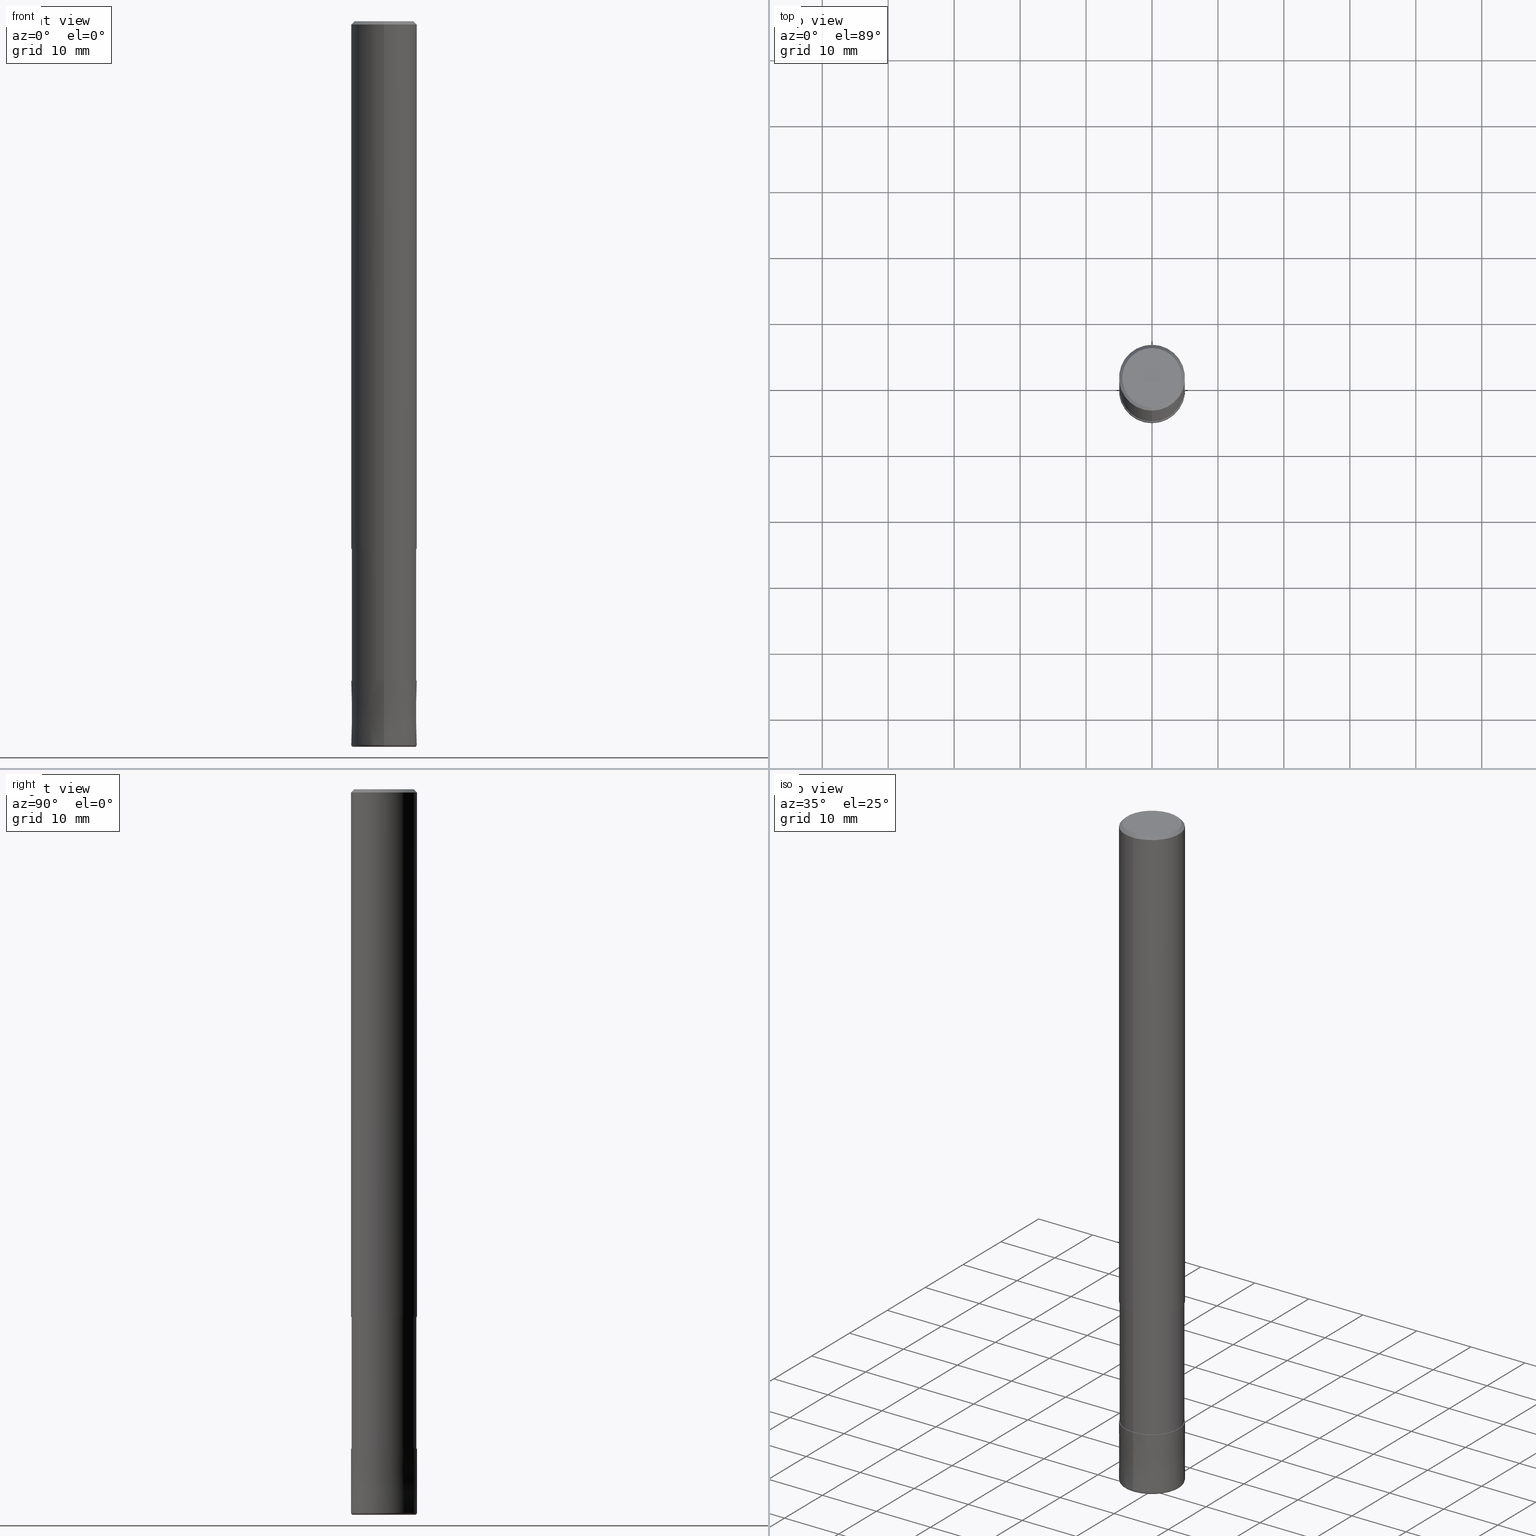
[diagram: canonical four-view strip — front | top / right | iso, engineering-drawing reading convention]
A machine part, canonical four-view strip (front | top / right | iso — engineering-drawing reading convention). The complete STEP part file that produces these views, byte-faithful:
ISO-10303-21;
HEADER;
FILE_DESCRIPTION(('no description'),'unknown implementation level');
FILE_NAME('CRRS4100-03-30-Huellk.stp','  ',('CIMSOURCE GmbH'),('CADClick - KiM GmbH - www.kimweb.de'),'unknown preprocess','ACIS','unknown authorization');
FILE_SCHEMA(('automotive_design'));
ENDSEC;
DATA;
#1=MECHANICAL_DESIGN_GEOMETRIC_PRESENTATION_REPRESENTATION(' ',(#14,#15,#16,#17,#18,#19,#20,#21,#22,#23,#24,#25,#26,#27,#28,#29,#30,#31,#32,#33,#34,#35,#36,#37,#38,#39,#40,#41,#42,#43,#44,#45,#46,#47,#48,#49,#50,#51,#52,#53,#54,#55,#56,#57,#58,#59,#60,#61,#62,#63,#64,#65,#66,#67,#68,#69,#70,#71,#72),#10);
#2=PRODUCT_DEFINITION_CONTEXT('',#73,'design');
#3=APPLICATION_PROTOCOL_DEFINITION('INTERNATIONAL STANDARD','automotive_design',1994,#73);
#4=PRODUCT_CATEGORY_RELATIONSHIP('NONE','NONE',#74,#75);
#5=SHAPE_DEFINITION_REPRESENTATION(#76,#77);
#6=PRODUCT_DEFINITION_CONTEXT('',#78,'design');
#7=APPLICATION_PROTOCOL_DEFINITION('INTERNATIONAL STANDARD','automotive_design',1994,#78);
#8=PRODUCT_CATEGORY_RELATIONSHIP('NONE','NONE',#79,#80);
#9=SHAPE_DEFINITION_REPRESENTATION(#81,#82);
#10= (GEOMETRIC_REPRESENTATION_CONTEXT(3)GLOBAL_UNCERTAINTY_ASSIGNED_CONTEXT((#85))GLOBAL_UNIT_ASSIGNED_CONTEXT((#87,#88,#89))REPRESENTATION_CONTEXT('NONE','WORKSPACE'));
#14=STYLED_ITEM('',(#91),#92);
#15=STYLED_ITEM('',(#93),#94);
#16=STYLED_ITEM('',(#95),#96);
#17=STYLED_ITEM('',(#97),#98);
#18=STYLED_ITEM('',(#99),#100);
#19=STYLED_ITEM('',(#101),#102);
#20=STYLED_ITEM('',(#103),#104);
#21=STYLED_ITEM('',(#105),#106);
#22=STYLED_ITEM('',(#107),#108);
#23=STYLED_ITEM('',(#109),#110);
#24=STYLED_ITEM('',(#111),#112);
#25=STYLED_ITEM('',(#113),#114);
#26=STYLED_ITEM('',(#115),#116);
#27=STYLED_ITEM('',(#117),#118);
#28=STYLED_ITEM('',(#119),#120);
#29=STYLED_ITEM('',(#121),#122);
#30=STYLED_ITEM('',(#123),#124);
#31=STYLED_ITEM('',(#125),#126);
#32=STYLED_ITEM('',(#127),#128);
#33=STYLED_ITEM('',(#129),#130);
#34=STYLED_ITEM('',(#131),#132);
#35=STYLED_ITEM('',(#133),#134);
#36=STYLED_ITEM('',(#135),#136);
#37=STYLED_ITEM('',(#137),#138);
#38=STYLED_ITEM('',(#139),#140);
#39=STYLED_ITEM('',(#141),#142);
#40=STYLED_ITEM('',(#143),#144);
#41=STYLED_ITEM('',(#145),#146);
#42=STYLED_ITEM('',(#147),#148);
#43=STYLED_ITEM('',(#149),#150);
#44=STYLED_ITEM('',(#151),#152);
#45=STYLED_ITEM('',(#153),#154);
#46=STYLED_ITEM('',(#155),#156);
#47=STYLED_ITEM('',(#157),#158);
#48=STYLED_ITEM('',(#159),#160);
#49=STYLED_ITEM('',(#161),#162);
#50=STYLED_ITEM('',(#163),#164);
#51=STYLED_ITEM('',(#165),#166);
#52=STYLED_ITEM('',(#167),#168);
#53=STYLED_ITEM('',(#169),#170);
#54=STYLED_ITEM('',(#171),#172);
#55=STYLED_ITEM('',(#173),#174);
#56=STYLED_ITEM('',(#175),#176);
#57=STYLED_ITEM('',(#177),#178);
#58=STYLED_ITEM('',(#179),#180);
#59=STYLED_ITEM('',(#181),#182);
#60=STYLED_ITEM('',(#183),#184);
#61=STYLED_ITEM('',(#185),#186);
#62=STYLED_ITEM('',(#187),#188);
#63=STYLED_ITEM('',(#189),#190);
#64=STYLED_ITEM('',(#191),#192);
#65=STYLED_ITEM('',(#193),#194);
#66=STYLED_ITEM('',(#195),#196);
#67=STYLED_ITEM('',(#197),#198);
#68=STYLED_ITEM('',(#199),#200);
#69=STYLED_ITEM('',(#201),#202);
#70=STYLED_ITEM('',(#203),#204);
#71=STYLED_ITEM('',(#205),#206);
#72=STYLED_ITEM('',(#207),#208);
#73=APPLICATION_CONTEXT(' ');
#74=PRODUCT_CATEGORY('part','NONE');
#75=PRODUCT_RELATED_PRODUCT_CATEGORY('detail',' ',(#209));
#76=PRODUCT_DEFINITION_SHAPE('NONE','NONE',#210);
#77=ADVANCED_BREP_SHAPE_REPRESENTATION('1',(#200,#211),#10);
#78=APPLICATION_CONTEXT(' ');
#79=PRODUCT_CATEGORY('part','NONE');
#80=PRODUCT_RELATED_PRODUCT_CATEGORY('detail',' ',(#212));
#81=PRODUCT_DEFINITION_SHAPE('NONE','NONE',#213);
#82=ADVANCED_BREP_SHAPE_REPRESENTATION('2',(#184,#214),#10);
#85=UNCERTAINTY_MEASURE_WITH_UNIT(LENGTH_MEASURE(1.0E-006),#87,'','');
#87= (CONVERSION_BASED_UNIT('MILLIMETRE',#217)LENGTH_UNIT()NAMED_UNIT(#220));
#88= (NAMED_UNIT(#222)PLANE_ANGLE_UNIT()SI_UNIT($,.RADIAN.));
#89= (NAMED_UNIT(#222)SOLID_ANGLE_UNIT()SI_UNIT($,.STERADIAN.));
#91=PRESENTATION_STYLE_ASSIGNMENT((#228));
#92=EDGE_CURVE('',#98,#142,#229,.T.);
#93=PRESENTATION_STYLE_ASSIGNMENT((#230));
#94=VERTEX_POINT('',#231);
#95=PRESENTATION_STYLE_ASSIGNMENT((#232));
#96=EDGE_CURVE('',#114,#112,#233,.T.);
#97=PRESENTATION_STYLE_ASSIGNMENT((#234));
#98=VERTEX_POINT('',#235);
#99=PRESENTATION_STYLE_ASSIGNMENT((#236));
#100=EDGE_CURVE('',#104,#182,#237,.T.);
#101=PRESENTATION_STYLE_ASSIGNMENT((#238));
#102=EDGE_CURVE('',#98,#118,#239,.T.);
#103=PRESENTATION_STYLE_ASSIGNMENT((#240));
#104=VERTEX_POINT('',#241);
#105=PRESENTATION_STYLE_ASSIGNMENT((#242));
#106=EDGE_CURVE('',#126,#196,#243,.T.);
#107=PRESENTATION_STYLE_ASSIGNMENT((#244));
#108=ADVANCED_FACE('',(#245),#246,.T.);
#109=PRESENTATION_STYLE_ASSIGNMENT((#247));
#110=ADVANCED_FACE('',(#248),#249,.T.);
#111=PRESENTATION_STYLE_ASSIGNMENT((#250));
#112=VERTEX_POINT('',#251);
#113=PRESENTATION_STYLE_ASSIGNMENT((#252));
#114=VERTEX_POINT('',#253);
#115=PRESENTATION_STYLE_ASSIGNMENT((#254));
#116=ADVANCED_FACE('',(#255),#256,.T.);
#117=PRESENTATION_STYLE_ASSIGNMENT((#257));
#118=VERTEX_POINT('',#258);
#119=PRESENTATION_STYLE_ASSIGNMENT((#259));
#120=EDGE_CURVE('',#154,#126,#260,.T.);
#121=PRESENTATION_STYLE_ASSIGNMENT((#261));
#122=EDGE_CURVE('',#158,#118,#262,.T.);
#123=PRESENTATION_STYLE_ASSIGNMENT((#263));
#124=VERTEX_POINT('',#264);
#125=PRESENTATION_STYLE_ASSIGNMENT((#265));
#126=VERTEX_POINT('',#266);
#127=PRESENTATION_STYLE_ASSIGNMENT((#267));
#128=ADVANCED_FACE('',(#268),#269,.T.);
#129=PRESENTATION_STYLE_ASSIGNMENT((#270));
#130=VERTEX_POINT('',#271);
#131=PRESENTATION_STYLE_ASSIGNMENT((#272));
#132=EDGE_CURVE('',#94,#196,#273,.T.);
#133=PRESENTATION_STYLE_ASSIGNMENT((#274));
#134=EDGE_CURVE('',#164,#142,#275,.T.);
#135=PRESENTATION_STYLE_ASSIGNMENT((#276));
#136=EDGE_CURVE('',#118,#158,#277,.T.);
#137=PRESENTATION_STYLE_ASSIGNMENT((#278));
#138=EDGE_CURVE('',#104,#126,#279,.T.);
#139=PRESENTATION_STYLE_ASSIGNMENT((#280));
#140=EDGE_CURVE('',#98,#124,#281,.T.);
#141=PRESENTATION_STYLE_ASSIGNMENT((#282));
#142=VERTEX_POINT('',#283);
#143=PRESENTATION_STYLE_ASSIGNMENT((#284));
#144=ADVANCED_FACE('',(#285),#286,.T.);
#145=PRESENTATION_STYLE_ASSIGNMENT((#287));
#146=ADVANCED_FACE('',(#288),#289,.T.);
#147=PRESENTATION_STYLE_ASSIGNMENT((#290));
#148=ADVANCED_FACE('',(#291),#292,.T.);
#149=PRESENTATION_STYLE_ASSIGNMENT((#293));
#150=ADVANCED_FACE('',(#294),#295,.T.);
#151=PRESENTATION_STYLE_ASSIGNMENT((#296));
#152=ADVANCED_FACE('',(#297),#298,.T.);
#153=PRESENTATION_STYLE_ASSIGNMENT((#299));
#154=VERTEX_POINT('',#300);
#155=PRESENTATION_STYLE_ASSIGNMENT((#301));
#156=EDGE_CURVE('',#126,#154,#302,.T.);
#157=PRESENTATION_STYLE_ASSIGNMENT((#303));
#158=VERTEX_POINT('',#304);
#159=PRESENTATION_STYLE_ASSIGNMENT((#305));
#160=EDGE_CURVE('',#154,#182,#306,.T.);
#161=PRESENTATION_STYLE_ASSIGNMENT((#307));
#162=EDGE_CURVE('',#142,#98,#308,.T.);
#163=PRESENTATION_STYLE_ASSIGNMENT((#309));
#164=VERTEX_POINT('',#310);
#165=PRESENTATION_STYLE_ASSIGNMENT((#311));
#166=EDGE_CURVE('',#112,#176,#312,.T.);
#167=PRESENTATION_STYLE_ASSIGNMENT((#313));
#168=EDGE_CURVE('',#182,#104,#314,.T.);
#169=PRESENTATION_STYLE_ASSIGNMENT((#315));
#170=EDGE_CURVE('',#158,#142,#316,.T.);
#171=PRESENTATION_STYLE_ASSIGNMENT((#317));
#172=EDGE_CURVE('',#130,#114,#318,.T.);
#173=PRESENTATION_STYLE_ASSIGNMENT((#319));
#174=ADVANCED_FACE('',(#320,#321),#322,.T.);
#175=PRESENTATION_STYLE_ASSIGNMENT((#323));
#176=VERTEX_POINT('',#324);
#177=PRESENTATION_STYLE_ASSIGNMENT((#325));
#178=EDGE_CURVE('',#94,#154,#326,.T.);
#179=PRESENTATION_STYLE_ASSIGNMENT((#327));
#180=EDGE_CURVE('',#176,#130,#328,.T.);
#181=PRESENTATION_STYLE_ASSIGNMENT((#329));
#182=VERTEX_POINT('',#330);
#183=PRESENTATION_STYLE_ASSIGNMENT((#331));
#184=MANIFOLD_SOLID_BREP('2',#332);
#185=PRESENTATION_STYLE_ASSIGNMENT((#333));
#186=EDGE_CURVE('',#196,#94,#334,.T.);
#187=PRESENTATION_STYLE_ASSIGNMENT((#335));
#188=ADVANCED_FACE('',(#336),#337,.T.);
#189=PRESENTATION_STYLE_ASSIGNMENT((#338));
#190=ADVANCED_FACE('',(#339),#340,.T.);
#191=PRESENTATION_STYLE_ASSIGNMENT((#341));
#192=EDGE_CURVE('',#130,#176,#342,.T.);
#193=PRESENTATION_STYLE_ASSIGNMENT((#343));
#194=ADVANCED_FACE('',(#344),#345,.T.);
#195=PRESENTATION_STYLE_ASSIGNMENT((#346));
#196=VERTEX_POINT('',#347);
#197=PRESENTATION_STYLE_ASSIGNMENT((#348));
#198=ADVANCED_FACE('',(#349),#350,.T.);
#199=PRESENTATION_STYLE_ASSIGNMENT((#351));
#200=MANIFOLD_SOLID_BREP('1',#352);
#201=PRESENTATION_STYLE_ASSIGNMENT((#353));
#202=EDGE_CURVE('',#112,#114,#354,.T.);
#203=PRESENTATION_STYLE_ASSIGNMENT((#355));
#204=EDGE_CURVE('',#164,#124,#356,.T.);
#205=PRESENTATION_STYLE_ASSIGNMENT((#357));
#206=ADVANCED_FACE('',(#358),#359,.T.);
#207=PRESENTATION_STYLE_ASSIGNMENT((#360));
#208=EDGE_CURVE('',#124,#164,#361,.T.);
#209=PRODUCT('1','1','PART-1-DESC',(#362));
#210=PRODUCT_DEFINITION('NONE','NONE',#363,#2);
#211=AXIS2_PLACEMENT_3D('',#364,#365,#366);
#212=PRODUCT('2','2','PART-2-DESC',(#367));
#213=PRODUCT_DEFINITION('NONE','NONE',#368,#6);
#214=AXIS2_PLACEMENT_3D('',#369,#370,#371);
#217=LENGTH_MEASURE_WITH_UNIT(LENGTH_MEASURE(1.0),#372);
#220=DIMENSIONAL_EXPONENTS(1.0,0.0,0.0,0.0,0.0,0.0,0.0);
#222=DIMENSIONAL_EXPONENTS(0.0,0.0,0.0,0.0,0.0,0.0,0.0);
#228=CURVE_STYLE('',#373,POSITIVE_LENGTH_MEASURE(1.0E-006),#374);
#229=CIRCLE('',#375,5.0);
#230=POINT_STYLE(' ',#376,POSITIVE_LENGTH_MEASURE(1.0E-006),#377);
#231=CARTESIAN_POINT('',(0.0,4.5,0.0));
#232=CURVE_STYLE('',#378,POSITIVE_LENGTH_MEASURE(1.0E-006),#379);
#233=CIRCLE('',#380,4.90995);
#234=POINT_STYLE(' ',#381,POSITIVE_LENGTH_MEASURE(1.0E-006),#382);
#235=CARTESIAN_POINT('',(6.12303176911189E-016,-5.0,-109.7));
#236=CURVE_STYLE('',#383,POSITIVE_LENGTH_MEASURE(1.0E-006),#384);
#237=CIRCLE('',#385,5.0);
#238=CURVE_STYLE('',#386,POSITIVE_LENGTH_MEASURE(1.0E-006),#387);
#239=LINE('',#388,#389);
#240=POINT_STYLE(' ',#390,POSITIVE_LENGTH_MEASURE(1.0E-006),#391);
#241=CARTESIAN_POINT('',(6.12303176911189E-016,-5.0,-80.0));
#242=CURVE_STYLE('',#392,POSITIVE_LENGTH_MEASURE(1.0E-006),#393);
#243=LINE('',#394,#395);
#244=SURFACE_STYLE_USAGE(.BOTH.,#396);
#245=FACE_OUTER_BOUND('',#397,.T.);
#246=TOROIDAL_SURFACE('',#398,4.7,0.300000000000002);
#247=SURFACE_STYLE_USAGE(.BOTH.,#399);
#248=FACE_OUTER_BOUND('',#400,.T.);
#249=PLANE('',#401);
#250=POINT_STYLE(' ',#402,POSITIVE_LENGTH_MEASURE(1.0E-006),#403);
#251=CARTESIAN_POINT('',(0.0,4.90995,-80.0));
#252=POINT_STYLE(' ',#404,POSITIVE_LENGTH_MEASURE(1.0E-006),#405);
#253=CARTESIAN_POINT('',(6.01275596695018E-016,-4.90995,-80.0));
#254=SURFACE_STYLE_USAGE(.BOTH.,#406);
#255=FACE_OUTER_BOUND('',#407,.T.);
#256=TOROIDAL_SURFACE('',#408,4.7,0.300000000000002);
#257=POINT_STYLE(' ',#409,POSITIVE_LENGTH_MEASURE(1.0E-006),#410);
#258=CARTESIAN_POINT('',(6.1229093084765E-016,-4.9999,-100.0));
#259=CURVE_STYLE('',#411,POSITIVE_LENGTH_MEASURE(1.0E-006),#412);
#260=CIRCLE('',#413,5.0);
#261=CURVE_STYLE('',#414,POSITIVE_LENGTH_MEASURE(1.0E-006),#415);
#262=CIRCLE('',#416,4.9999);
#263=POINT_STYLE(' ',#417,POSITIVE_LENGTH_MEASURE(1.0E-006),#418);
#264=CARTESIAN_POINT('',(5.75564986296517E-016,-4.7,-110.0));
#265=POINT_STYLE(' ',#419,POSITIVE_LENGTH_MEASURE(1.0E-006),#420);
#266=CARTESIAN_POINT('',(6.12303176911189E-016,-5.0,-0.5));
#267=SURFACE_STYLE_USAGE(.BOTH.,#421);
#268=FACE_OUTER_BOUND('',#422,.T.);
#269=CYLINDRICAL_SURFACE('',#423,4.90995);
#270=POINT_STYLE(' ',#424,POSITIVE_LENGTH_MEASURE(1.0E-006),#425);
#271=CARTESIAN_POINT('',(6.01275596695018E-016,-4.90995,-100.0));
#272=CURVE_STYLE('',#426,POSITIVE_LENGTH_MEASURE(1.0E-006),#427);
#273=CIRCLE('',#428,4.5);
#274=CURVE_STYLE('',#429,POSITIVE_LENGTH_MEASURE(1.0E-006),#430);
#275=CIRCLE('',#431,0.300000000000002);
#276=CURVE_STYLE('',#432,POSITIVE_LENGTH_MEASURE(1.0E-006),#433);
#277=CIRCLE('',#434,4.9999);
#278=CURVE_STYLE('',#435,POSITIVE_LENGTH_MEASURE(1.0E-006),#436);
#279=LINE('',#437,#438);
#280=CURVE_STYLE('',#439,POSITIVE_LENGTH_MEASURE(1.0E-006),#440);
#281=CIRCLE('',#441,0.300000000000002);
#282=POINT_STYLE(' ',#442,POSITIVE_LENGTH_MEASURE(1.0E-006),#443);
#283=CARTESIAN_POINT('',(0.0,5.0,-109.7));
#284=SURFACE_STYLE_USAGE(.BOTH.,#444);
#285=FACE_OUTER_BOUND('',#445,.T.);
#286=CYLINDRICAL_SURFACE('',#446,5.0);
#287=SURFACE_STYLE_USAGE(.BOTH.,#447);
#288=FACE_OUTER_BOUND('',#448,.T.);
#289=CONICAL_SURFACE('',#449,4.99995,1.03092783501262E-005);
#290=SURFACE_STYLE_USAGE(.BOTH.,#450);
#291=FACE_OUTER_BOUND('',#451,.T.);
#292=CONICAL_SURFACE('',#452,4.75,0.785398163397448);
#293=SURFACE_STYLE_USAGE(.BOTH.,#453);
#294=FACE_OUTER_BOUND('',#454,.T.);
#295=PLANE('',#455);
#296=SURFACE_STYLE_USAGE(.BOTH.,#456);
#297=FACE_OUTER_BOUND('',#457,.T.);
#298=CYLINDRICAL_SURFACE('',#458,5.0);
#299=POINT_STYLE(' ',#459,POSITIVE_LENGTH_MEASURE(1.0E-006),#460);
#300=CARTESIAN_POINT('',(0.0,5.0,-0.5));
#301=CURVE_STYLE('',#461,POSITIVE_LENGTH_MEASURE(1.0E-006),#462);
#302=CIRCLE('',#463,5.0);
#303=POINT_STYLE(' ',#464,POSITIVE_LENGTH_MEASURE(1.0E-006),#465);
#304=CARTESIAN_POINT('',(0.0,4.9999,-100.0));
#305=CURVE_STYLE('',#466,POSITIVE_LENGTH_MEASURE(1.0E-006),#467);
#306=LINE('',#468,#469);
#307=CURVE_STYLE('',#470,POSITIVE_LENGTH_MEASURE(1.0E-006),#471);
#308=CIRCLE('',#472,5.0);
#309=POINT_STYLE(' ',#473,POSITIVE_LENGTH_MEASURE(1.0E-006),#474);
#310=CARTESIAN_POINT('',(0.0,4.7,-110.0));
#311=CURVE_STYLE('',#475,POSITIVE_LENGTH_MEASURE(1.0E-006),#476);
#312=LINE('',#477,#478);
#313=CURVE_STYLE('',#479,POSITIVE_LENGTH_MEASURE(1.0E-006),#480);
#314=CIRCLE('',#481,5.0);
#315=CURVE_STYLE('',#482,POSITIVE_LENGTH_MEASURE(1.0E-006),#483);
#316=LINE('',#484,#485);
#317=CURVE_STYLE('',#486,POSITIVE_LENGTH_MEASURE(1.0E-006),#487);
#318=LINE('',#488,#489);
#319=SURFACE_STYLE_USAGE(.BOTH.,#490);
#320=FACE_OUTER_BOUND('',#491,.T.);
#321=FACE_BOUND('',#492,.T.);
#322=PLANE('',#493);
#323=POINT_STYLE(' ',#494,POSITIVE_LENGTH_MEASURE(1.0E-006),#495);
#324=CARTESIAN_POINT('',(0.0,4.90995,-100.0));
#325=CURVE_STYLE('',#496,POSITIVE_LENGTH_MEASURE(1.0E-006),#497);
#326=LINE('',#498,#499);
#327=CURVE_STYLE('',#500,POSITIVE_LENGTH_MEASURE(1.0E-006),#501);
#328=CIRCLE('',#502,4.90995);
#329=POINT_STYLE(' ',#503,POSITIVE_LENGTH_MEASURE(1.0E-006),#504);
#330=CARTESIAN_POINT('',(0.0,5.0,-80.0));
#331=SURFACE_STYLE_USAGE(.BOTH.,#505);
#332=CLOSED_SHELL('',(#116,#146,#110,#194,#108,#190));
#333=CURVE_STYLE('',#506,POSITIVE_LENGTH_MEASURE(1.0E-006),#507);
#334=CIRCLE('',#508,4.5);
#335=SURFACE_STYLE_USAGE(.BOTH.,#509);
#336=FACE_OUTER_BOUND('',#510,.T.);
#337=CONICAL_SURFACE('',#511,4.75,0.785398163397448);
#338=SURFACE_STYLE_USAGE(.BOTH.,#512);
#339=FACE_OUTER_BOUND('',#513,.T.);
#340=PLANE('',#514);
#341=CURVE_STYLE('',#515,POSITIVE_LENGTH_MEASURE(1.0E-006),#516);
#342=CIRCLE('',#517,4.90995);
#343=SURFACE_STYLE_USAGE(.BOTH.,#518);
#344=FACE_OUTER_BOUND('',#519,.T.);
#345=CONICAL_SURFACE('',#520,4.99995,1.03092783501262E-005);
#346=POINT_STYLE(' ',#521,POSITIVE_LENGTH_MEASURE(1.0E-006),#522);
#347=CARTESIAN_POINT('',(5.5107285922007E-016,-4.5,0.0));
#348=SURFACE_STYLE_USAGE(.BOTH.,#523);
#349=FACE_OUTER_BOUND('',#524,.T.);
#350=CYLINDRICAL_SURFACE('',#525,4.90995);
#351=SURFACE_STYLE_USAGE(.BOTH.,#526);
#352=CLOSED_SHELL('',(#128,#152,#188,#174,#206,#148,#144,#198,#150));
#353=CURVE_STYLE('',#527,POSITIVE_LENGTH_MEASURE(1.0E-006),#528);
#354=CIRCLE('',#529,4.90995);
#355=CURVE_STYLE('',#530,POSITIVE_LENGTH_MEASURE(1.0E-006),#531);
#356=CIRCLE('',#532,4.7);
#357=SURFACE_STYLE_USAGE(.BOTH.,#533);
#358=FACE_OUTER_BOUND('',#534,.T.);
#359=PLANE('',#535);
#360=CURVE_STYLE('',#536,POSITIVE_LENGTH_MEASURE(1.0E-006),#537);
#361=CIRCLE('',#538,4.7);
#362=PRODUCT_CONTEXT('',#73,'mechanical');
#363=PRODUCT_DEFINITION_FORMATION_WITH_SPECIFIED_SOURCE(' ','NONE',#209,.NOT_KNOWN.);
#364=CARTESIAN_POINT('',(0.0,0.0,0.0));
#365=DIRECTION('',(0.0,0.0,1.0));
#366=DIRECTION('',(1.0,0.0,0.0));
#367=PRODUCT_CONTEXT('',#78,'mechanical');
#368=PRODUCT_DEFINITION_FORMATION_WITH_SPECIFIED_SOURCE(' ','NONE',#212,.NOT_KNOWN.);
#369=CARTESIAN_POINT('',(0.0,0.0,0.0));
#370=DIRECTION('',(0.0,0.0,1.0));
#371=DIRECTION('',(1.0,0.0,0.0));
#372= (NAMED_UNIT(#220)LENGTH_UNIT()SI_UNIT(.MILLI.,.METRE.));
#373=DRAUGHTING_PRE_DEFINED_CURVE_FONT('continuous');
#374=COLOUR_RGB('',0.800000011920929,0.800000011920929,0.800000011920929);
#375=AXIS2_PLACEMENT_3D('',#540,#541,#542);
#376=PRE_DEFINED_MARKER('');
#377=COLOUR_RGB('',0.498039215803146,0.498039215803146,0.498039215803146);
#378=DRAUGHTING_PRE_DEFINED_CURVE_FONT('continuous');
#379=COLOUR_RGB('',0.498039215803146,0.498039215803146,0.498039215803146);
#380=AXIS2_PLACEMENT_3D('',#543,#544,#545);
#381=PRE_DEFINED_MARKER('');
#382=COLOUR_RGB('',0.800000011920929,0.800000011920929,0.800000011920929);
#383=DRAUGHTING_PRE_DEFINED_CURVE_FONT('continuous');
#384=COLOUR_RGB('',0.498039215803146,0.498039215803146,0.498039215803146);
#385=AXIS2_PLACEMENT_3D('',#546,#547,#548);
#386=DRAUGHTING_PRE_DEFINED_CURVE_FONT('continuous');
#387=COLOUR_RGB('',0.800000011920929,0.800000011920929,0.800000011920929);
#388=CARTESIAN_POINT('',(6.1229705387942E-016,-4.99995,-104.85));
#389=VECTOR('',#549,1.0);
#390=PRE_DEFINED_MARKER('');
#391=COLOUR_RGB('',0.498039215803146,0.498039215803146,0.498039215803146);
#392=DRAUGHTING_PRE_DEFINED_CURVE_FONT('continuous');
#393=COLOUR_RGB('',0.498039215803146,0.498039215803146,0.498039215803146);
#394=CARTESIAN_POINT('',(5.81688018065629E-016,-4.75,-0.25));
#395=VECTOR('',#550,1.0);
#396=SURFACE_SIDE_STYLE('',(#551));
#397=EDGE_LOOP('',(#552,#553,#554,#555));
#398=AXIS2_PLACEMENT_3D('',#556,#557,#558);
#399=SURFACE_SIDE_STYLE('',(#559));
#400=EDGE_LOOP('',(#560,#561));
#401=AXIS2_PLACEMENT_3D('',#562,#563,#564);
#402=PRE_DEFINED_MARKER('');
#403=COLOUR_RGB('',0.498039215803146,0.498039215803146,0.498039215803146);
#404=PRE_DEFINED_MARKER('');
#405=COLOUR_RGB('',0.498039215803146,0.498039215803146,0.498039215803146);
#406=SURFACE_SIDE_STYLE('',(#565));
#407=EDGE_LOOP('',(#566,#567,#568,#569));
#408=AXIS2_PLACEMENT_3D('',#570,#571,#572);
#409=PRE_DEFINED_MARKER('');
#410=COLOUR_RGB('',0.800000011920929,0.800000011920929,0.800000011920929);
#411=DRAUGHTING_PRE_DEFINED_CURVE_FONT('continuous');
#412=COLOUR_RGB('',0.498039215803146,0.498039215803146,0.498039215803146);
#413=AXIS2_PLACEMENT_3D('',#573,#574,#575);
#414=DRAUGHTING_PRE_DEFINED_CURVE_FONT('continuous');
#415=COLOUR_RGB('',0.800000011920929,0.800000011920929,0.800000011920929);
#416=AXIS2_PLACEMENT_3D('',#576,#577,#578);
#417=PRE_DEFINED_MARKER('');
#418=COLOUR_RGB('',0.800000011920929,0.800000011920929,0.800000011920929);
#419=PRE_DEFINED_MARKER('');
#420=COLOUR_RGB('',0.498039215803146,0.498039215803146,0.498039215803146);
#421=SURFACE_SIDE_STYLE('',(#579));
#422=EDGE_LOOP('',(#580,#581,#582,#583));
#423=AXIS2_PLACEMENT_3D('',#584,#585,#586);
#424=PRE_DEFINED_MARKER('');
#425=COLOUR_RGB('',0.498039215803146,0.498039215803146,0.498039215803146);
#426=DRAUGHTING_PRE_DEFINED_CURVE_FONT('continuous');
#427=COLOUR_RGB('',0.498039215803146,0.498039215803146,0.498039215803146);
#428=AXIS2_PLACEMENT_3D('',#587,#588,#589);
#429=DRAUGHTING_PRE_DEFINED_CURVE_FONT('continuous');
#430=COLOUR_RGB('',0.800000011920929,0.800000011920929,0.800000011920929);
#431=AXIS2_PLACEMENT_3D('',#590,#591,#592);
#432=DRAUGHTING_PRE_DEFINED_CURVE_FONT('continuous');
#433=COLOUR_RGB('',0.800000011920929,0.800000011920929,0.800000011920929);
#434=AXIS2_PLACEMENT_3D('',#593,#594,#595);
#435=DRAUGHTING_PRE_DEFINED_CURVE_FONT('continuous');
#436=COLOUR_RGB('',0.498039215803146,0.498039215803146,0.498039215803146);
#437=CARTESIAN_POINT('',(6.12303176911189E-016,-5.0,-40.25));
#438=VECTOR('',#596,1.0);
#439=DRAUGHTING_PRE_DEFINED_CURVE_FONT('continuous');
#440=COLOUR_RGB('',0.800000011920929,0.800000011920929,0.800000011920929);
#441=AXIS2_PLACEMENT_3D('',#597,#598,#599);
#442=PRE_DEFINED_MARKER('');
#443=COLOUR_RGB('',0.800000011920929,0.800000011920929,0.800000011920929);
#444=SURFACE_SIDE_STYLE('',(#600));
#445=EDGE_LOOP('',(#601,#602,#603,#604));
#446=AXIS2_PLACEMENT_3D('',#605,#606,#607);
#447=SURFACE_SIDE_STYLE('',(#608));
#448=EDGE_LOOP('',(#609,#610,#611,#612));
#449=AXIS2_PLACEMENT_3D('',#613,#614,#615);
#450=SURFACE_SIDE_STYLE('',(#616));
#451=EDGE_LOOP('',(#617,#618,#619,#620));
#452=AXIS2_PLACEMENT_3D('',#621,#622,#623);
#453=SURFACE_SIDE_STYLE('',(#624));
#454=EDGE_LOOP('',(#625,#626));
#455=AXIS2_PLACEMENT_3D('',#627,#628,#629);
#456=SURFACE_SIDE_STYLE('',(#630));
#457=EDGE_LOOP('',(#631,#632,#633,#634));
#458=AXIS2_PLACEMENT_3D('',#635,#636,#637);
#459=PRE_DEFINED_MARKER('');
#460=COLOUR_RGB('',0.498039215803146,0.498039215803146,0.498039215803146);
#461=DRAUGHTING_PRE_DEFINED_CURVE_FONT('continuous');
#462=COLOUR_RGB('',0.498039215803146,0.498039215803146,0.498039215803146);
#463=AXIS2_PLACEMENT_3D('',#638,#639,#640);
#464=PRE_DEFINED_MARKER('');
#465=COLOUR_RGB('',0.800000011920929,0.800000011920929,0.800000011920929);
#466=DRAUGHTING_PRE_DEFINED_CURVE_FONT('continuous');
#467=COLOUR_RGB('',0.498039215803146,0.498039215803146,0.498039215803146);
#468=CARTESIAN_POINT('',(-6.12303176911189E-016,5.0,-40.25));
#469=VECTOR('',#641,1.0);
#470=DRAUGHTING_PRE_DEFINED_CURVE_FONT('continuous');
#471=COLOUR_RGB('',0.800000011920929,0.800000011920929,0.800000011920929);
#472=AXIS2_PLACEMENT_3D('',#642,#643,#644);
#473=PRE_DEFINED_MARKER('');
#474=COLOUR_RGB('',0.800000011920929,0.800000011920929,0.800000011920929);
#475=DRAUGHTING_PRE_DEFINED_CURVE_FONT('continuous');
#476=COLOUR_RGB('',0.498039215803146,0.498039215803146,0.498039215803146);
#477=CARTESIAN_POINT('',(-6.01275596695018E-016,4.90995,-90.0));
#478=VECTOR('',#645,1.0);
#479=DRAUGHTING_PRE_DEFINED_CURVE_FONT('continuous');
#480=COLOUR_RGB('',0.498039215803146,0.498039215803146,0.498039215803146);
#481=AXIS2_PLACEMENT_3D('',#646,#647,#648);
#482=DRAUGHTING_PRE_DEFINED_CURVE_FONT('continuous');
#483=COLOUR_RGB('',0.800000011920929,0.800000011920929,0.800000011920929);
#484=CARTESIAN_POINT('',(-6.1229705387942E-016,4.99995,-104.85));
#485=VECTOR('',#649,1.0);
#486=DRAUGHTING_PRE_DEFINED_CURVE_FONT('continuous');
#487=COLOUR_RGB('',0.498039215803146,0.498039215803146,0.498039215803146);
#488=CARTESIAN_POINT('',(6.01275596695018E-016,-4.90995,-90.0));
#489=VECTOR('',#650,1.0);
#490=SURFACE_SIDE_STYLE('',(#651));
#491=EDGE_LOOP('',(#652,#653));
#492=EDGE_LOOP('',(#654,#655));
#493=AXIS2_PLACEMENT_3D('',#656,#657,#658);
#494=PRE_DEFINED_MARKER('');
#495=COLOUR_RGB('',0.498039215803146,0.498039215803146,0.498039215803146);
#496=DRAUGHTING_PRE_DEFINED_CURVE_FONT('continuous');
#497=COLOUR_RGB('',0.498039215803146,0.498039215803146,0.498039215803146);
#498=CARTESIAN_POINT('',(-5.81688018065629E-016,4.75,-0.25));
#499=VECTOR('',#659,1.0);
#500=DRAUGHTING_PRE_DEFINED_CURVE_FONT('continuous');
#501=COLOUR_RGB('',0.498039215803146,0.498039215803146,0.498039215803146);
#502=AXIS2_PLACEMENT_3D('',#660,#661,#662);
#503=PRE_DEFINED_MARKER('');
#504=COLOUR_RGB('',0.498039215803146,0.498039215803146,0.498039215803146);
#505=SURFACE_SIDE_STYLE('',(#663));
#506=DRAUGHTING_PRE_DEFINED_CURVE_FONT('continuous');
#507=COLOUR_RGB('',0.498039215803146,0.498039215803146,0.498039215803146);
#508=AXIS2_PLACEMENT_3D('',#664,#665,#666);
#509=SURFACE_SIDE_STYLE('',(#667));
#510=EDGE_LOOP('',(#668,#669,#670,#671));
#511=AXIS2_PLACEMENT_3D('',#672,#673,#674);
#512=SURFACE_SIDE_STYLE('',(#675));
#513=EDGE_LOOP('',(#676,#677));
#514=AXIS2_PLACEMENT_3D('',#678,#679,#680);
#515=DRAUGHTING_PRE_DEFINED_CURVE_FONT('continuous');
#516=COLOUR_RGB('',0.498039215803146,0.498039215803146,0.498039215803146);
#517=AXIS2_PLACEMENT_3D('',#681,#682,#683);
#518=SURFACE_SIDE_STYLE('',(#684));
#519=EDGE_LOOP('',(#685,#686,#687,#688));
#520=AXIS2_PLACEMENT_3D('',#689,#690,#691);
#521=PRE_DEFINED_MARKER('');
#522=COLOUR_RGB('',0.498039215803146,0.498039215803146,0.498039215803146);
#523=SURFACE_SIDE_STYLE('',(#692));
#524=EDGE_LOOP('',(#693,#694,#695,#696));
#525=AXIS2_PLACEMENT_3D('',#697,#698,#699);
#526=SURFACE_SIDE_STYLE('',(#700));
#527=DRAUGHTING_PRE_DEFINED_CURVE_FONT('continuous');
#528=COLOUR_RGB('',0.498039215803146,0.498039215803146,0.498039215803146);
#529=AXIS2_PLACEMENT_3D('',#701,#702,#703);
#530=DRAUGHTING_PRE_DEFINED_CURVE_FONT('continuous');
#531=COLOUR_RGB('',0.800000011920929,0.800000011920929,0.800000011920929);
#532=AXIS2_PLACEMENT_3D('',#704,#705,#706);
#533=SURFACE_SIDE_STYLE('',(#707));
#534=EDGE_LOOP('',(#708,#709));
#535=AXIS2_PLACEMENT_3D('',#710,#711,#712);
#536=DRAUGHTING_PRE_DEFINED_CURVE_FONT('continuous');
#537=COLOUR_RGB('',0.800000011920929,0.800000011920929,0.800000011920929);
#538=AXIS2_PLACEMENT_3D('',#713,#714,#715);
#540=CARTESIAN_POINT('',(0.0,0.0,-109.7));
#541=DIRECTION('',(0.0,0.0,-1.0));
#542=DIRECTION('',(0.0,1.0,0.0));
#543=CARTESIAN_POINT('',(0.0,0.0,-80.0));
#544=DIRECTION('',(0.0,0.0,-1.0));
#545=DIRECTION('',(0.0,1.0,0.0));
#546=CARTESIAN_POINT('',(0.0,0.0,-80.0));
#547=DIRECTION('',(0.0,0.0,-1.0));
#548=DIRECTION('',(0.0,1.0,0.0));
#549=DIRECTION('',(-1.26248077706644E-021,1.03092783499436E-005,0.999999999946859));
#550=DIRECTION('',(-8.65927457071936E-017,0.707106781186548,0.707106781186548));
#551=SURFACE_STYLE_FILL_AREA(#716);
#552=ORIENTED_EDGE('',*,*,#140,.T.);
#553=ORIENTED_EDGE('',*,*,#204,.F.);
#554=ORIENTED_EDGE('',*,*,#134,.T.);
#555=ORIENTED_EDGE('',*,*,#162,.T.);
#556=CARTESIAN_POINT('',(0.0,0.0,-109.7));
#557=DIRECTION('',(0.0,0.0,-1.0));
#558=DIRECTION('',(0.0,-1.0,0.0));
#559=SURFACE_STYLE_FILL_AREA(#717);
#560=ORIENTED_EDGE('',*,*,#122,.F.);
#561=ORIENTED_EDGE('',*,*,#136,.F.);
#562=CARTESIAN_POINT('',(0.0,2.49995,-100.0));
#563=DIRECTION('',(-0.0,0.0,1.0));
#564=DIRECTION('',(0.0,-1.0,0.0));
#565=SURFACE_STYLE_FILL_AREA(#718);
#566=ORIENTED_EDGE('',*,*,#140,.F.);
#567=ORIENTED_EDGE('',*,*,#92,.T.);
#568=ORIENTED_EDGE('',*,*,#134,.F.);
#569=ORIENTED_EDGE('',*,*,#208,.F.);
#570=CARTESIAN_POINT('',(0.0,0.0,-109.7));
#571=DIRECTION('',(0.0,0.0,-1.0));
#572=DIRECTION('',(0.0,-1.0,0.0));
#573=CARTESIAN_POINT('',(0.0,0.0,-0.5));
#574=DIRECTION('',(0.0,0.0,-1.0));
#575=DIRECTION('',(0.0,1.0,0.0));
#576=CARTESIAN_POINT('',(0.0,0.0,-100.0));
#577=DIRECTION('',(0.0,0.0,-1.0));
#578=DIRECTION('',(0.0,1.0,0.0));
#579=SURFACE_STYLE_FILL_AREA(#719);
#580=ORIENTED_EDGE('',*,*,#166,.F.);
#581=ORIENTED_EDGE('',*,*,#202,.T.);
#582=ORIENTED_EDGE('',*,*,#172,.F.);
#583=ORIENTED_EDGE('',*,*,#180,.F.);
#584=CARTESIAN_POINT('',(0.0,0.0,-90.0));
#585=DIRECTION('',(-0.0,-0.0,1.0));
#586=DIRECTION('',(0.0,1.0,0.0));
#587=CARTESIAN_POINT('',(0.0,0.0,0.0));
#588=DIRECTION('',(0.0,0.0,-1.0));
#589=DIRECTION('',(0.0,1.0,0.0));
#590=CARTESIAN_POINT('',(-5.75564986296517E-016,4.7,-109.7));
#591=DIRECTION('',(1.0,1.22460635382238E-016,0.0));
#592=DIRECTION('',(-1.22460635382238E-016,1.0,0.0));
#593=CARTESIAN_POINT('',(0.0,0.0,-100.0));
#594=DIRECTION('',(0.0,0.0,-1.0));
#595=DIRECTION('',(0.0,1.0,0.0));
#596=DIRECTION('',(-0.0,-0.0,1.0));
#597=CARTESIAN_POINT('',(5.75564986296517E-016,-4.7,-109.7));
#598=DIRECTION('',(1.0,1.22460635382238E-016,0.0));
#599=DIRECTION('',(1.22460635382238E-016,-1.0,-0.0));
#600=SURFACE_STYLE_FILL_AREA(#720);
#601=ORIENTED_EDGE('',*,*,#160,.T.);
#602=ORIENTED_EDGE('',*,*,#100,.F.);
#603=ORIENTED_EDGE('',*,*,#138,.T.);
#604=ORIENTED_EDGE('',*,*,#156,.T.);
#605=CARTESIAN_POINT('',(0.0,0.0,-40.25));
#606=DIRECTION('',(-0.0,-0.0,1.0));
#607=DIRECTION('',(0.0,1.0,0.0));
#608=SURFACE_STYLE_FILL_AREA(#721);
#609=ORIENTED_EDGE('',*,*,#170,.F.);
#610=ORIENTED_EDGE('',*,*,#122,.T.);
#611=ORIENTED_EDGE('',*,*,#102,.F.);
#612=ORIENTED_EDGE('',*,*,#162,.F.);
#613=CARTESIAN_POINT('',(0.0,0.0,-104.85));
#614=DIRECTION('',(0.0,-0.0,-1.0));
#615=DIRECTION('',(0.0,1.0,0.0));
#616=SURFACE_STYLE_FILL_AREA(#722);
#617=ORIENTED_EDGE('',*,*,#178,.T.);
#618=ORIENTED_EDGE('',*,*,#156,.F.);
#619=ORIENTED_EDGE('',*,*,#106,.T.);
#620=ORIENTED_EDGE('',*,*,#186,.T.);
#621=CARTESIAN_POINT('',(0.0,0.0,-0.25));
#622=DIRECTION('',(0.0,-0.0,-1.0));
#623=DIRECTION('',(0.0,1.0,0.0));
#624=SURFACE_STYLE_FILL_AREA(#723);
#625=ORIENTED_EDGE('',*,*,#180,.T.);
#626=ORIENTED_EDGE('',*,*,#192,.T.);
#627=CARTESIAN_POINT('',(0.0,2.454975,-100.0));
#628=DIRECTION('',(0.0,0.0,-1.0));
#629=DIRECTION('',(0.0,1.0,0.0));
#630=SURFACE_STYLE_FILL_AREA(#724);
#631=ORIENTED_EDGE('',*,*,#160,.F.);
#632=ORIENTED_EDGE('',*,*,#120,.T.);
#633=ORIENTED_EDGE('',*,*,#138,.F.);
#634=ORIENTED_EDGE('',*,*,#168,.F.);
#635=CARTESIAN_POINT('',(0.0,0.0,-40.25));
#636=DIRECTION('',(-0.0,-0.0,1.0));
#637=DIRECTION('',(0.0,1.0,0.0));
#638=CARTESIAN_POINT('',(0.0,0.0,-0.5));
#639=DIRECTION('',(0.0,0.0,-1.0));
#640=DIRECTION('',(0.0,1.0,0.0));
#641=DIRECTION('',(0.0,0.0,-1.0));
#642=CARTESIAN_POINT('',(0.0,0.0,-109.7));
#643=DIRECTION('',(0.0,0.0,-1.0));
#644=DIRECTION('',(0.0,1.0,0.0));
#645=DIRECTION('',(0.0,0.0,-1.0));
#646=CARTESIAN_POINT('',(0.0,0.0,-80.0));
#647=DIRECTION('',(0.0,0.0,-1.0));
#648=DIRECTION('',(0.0,1.0,0.0));
#649=DIRECTION('',(-1.26248077706644E-021,1.03092783499436E-005,-0.999999999946859));
#650=DIRECTION('',(-0.0,-0.0,1.0));
#651=SURFACE_STYLE_FILL_AREA(#725);
#652=ORIENTED_EDGE('',*,*,#168,.T.);
#653=ORIENTED_EDGE('',*,*,#100,.T.);
#654=ORIENTED_EDGE('',*,*,#202,.F.);
#655=ORIENTED_EDGE('',*,*,#96,.F.);
#656=CARTESIAN_POINT('',(0.0,2.5,-80.0));
#657=DIRECTION('',(0.0,0.0,-1.0));
#658=DIRECTION('',(0.0,1.0,0.0));
#659=DIRECTION('',(-8.65927457071936E-017,0.707106781186548,-0.707106781186548));
#660=CARTESIAN_POINT('',(0.0,0.0,-100.0));
#661=DIRECTION('',(0.0,0.0,-1.0));
#662=DIRECTION('',(0.0,1.0,0.0));
#663=SURFACE_STYLE_FILL_AREA(#726);
#664=CARTESIAN_POINT('',(0.0,0.0,0.0));
#665=DIRECTION('',(0.0,0.0,-1.0));
#666=DIRECTION('',(0.0,1.0,0.0));
#667=SURFACE_STYLE_FILL_AREA(#727);
#668=ORIENTED_EDGE('',*,*,#178,.F.);
#669=ORIENTED_EDGE('',*,*,#132,.T.);
#670=ORIENTED_EDGE('',*,*,#106,.F.);
#671=ORIENTED_EDGE('',*,*,#120,.F.);
#672=CARTESIAN_POINT('',(0.0,0.0,-0.25));
#673=DIRECTION('',(0.0,-0.0,-1.0));
#674=DIRECTION('',(0.0,1.0,0.0));
#675=SURFACE_STYLE_FILL_AREA(#728);
#676=ORIENTED_EDGE('',*,*,#204,.T.);
#677=ORIENTED_EDGE('',*,*,#208,.T.);
#678=CARTESIAN_POINT('',(0.0,2.35,-110.0));
#679=DIRECTION('',(0.0,0.0,-1.0));
#680=DIRECTION('',(0.0,1.0,0.0));
#681=CARTESIAN_POINT('',(0.0,0.0,-100.0));
#682=DIRECTION('',(0.0,0.0,-1.0));
#683=DIRECTION('',(0.0,1.0,0.0));
#684=SURFACE_STYLE_FILL_AREA(#729);
#685=ORIENTED_EDGE('',*,*,#170,.T.);
#686=ORIENTED_EDGE('',*,*,#92,.F.);
#687=ORIENTED_EDGE('',*,*,#102,.T.);
#688=ORIENTED_EDGE('',*,*,#136,.T.);
#689=CARTESIAN_POINT('',(0.0,0.0,-104.85));
#690=DIRECTION('',(0.0,-0.0,-1.0));
#691=DIRECTION('',(0.0,1.0,0.0));
#692=SURFACE_STYLE_FILL_AREA(#730);
#693=ORIENTED_EDGE('',*,*,#166,.T.);
#694=ORIENTED_EDGE('',*,*,#192,.F.);
#695=ORIENTED_EDGE('',*,*,#172,.T.);
#696=ORIENTED_EDGE('',*,*,#96,.T.);
#697=CARTESIAN_POINT('',(0.0,0.0,-90.0));
#698=DIRECTION('',(-0.0,-0.0,1.0));
#699=DIRECTION('',(0.0,1.0,0.0));
#700=SURFACE_STYLE_FILL_AREA(#731);
#701=CARTESIAN_POINT('',(0.0,0.0,-80.0));
#702=DIRECTION('',(0.0,0.0,-1.0));
#703=DIRECTION('',(0.0,1.0,0.0));
#704=CARTESIAN_POINT('',(0.0,0.0,-110.0));
#705=DIRECTION('',(0.0,0.0,-1.0));
#706=DIRECTION('',(0.0,1.0,0.0));
#707=SURFACE_STYLE_FILL_AREA(#732);
#708=ORIENTED_EDGE('',*,*,#132,.F.);
#709=ORIENTED_EDGE('',*,*,#186,.F.);
#710=CARTESIAN_POINT('',(0.0,2.25,0.0));
#711=DIRECTION('',(-0.0,0.0,1.0));
#712=DIRECTION('',(0.0,-1.0,0.0));
#713=CARTESIAN_POINT('',(0.0,0.0,-110.0));
#714=DIRECTION('',(0.0,0.0,-1.0));
#715=DIRECTION('',(0.0,1.0,0.0));
#716=FILL_AREA_STYLE('',(#733));
#717=FILL_AREA_STYLE('',(#734));
#718=FILL_AREA_STYLE('',(#735));
#719=FILL_AREA_STYLE('',(#736));
#720=FILL_AREA_STYLE('',(#737));
#721=FILL_AREA_STYLE('',(#738));
#722=FILL_AREA_STYLE('',(#739));
#723=FILL_AREA_STYLE('',(#740));
#724=FILL_AREA_STYLE('',(#741));
#725=FILL_AREA_STYLE('',(#742));
#726=FILL_AREA_STYLE('',(#743));
#727=FILL_AREA_STYLE('',(#744));
#728=FILL_AREA_STYLE('',(#745));
#729=FILL_AREA_STYLE('',(#746));
#730=FILL_AREA_STYLE('',(#747));
#731=FILL_AREA_STYLE('',(#748));
#732=FILL_AREA_STYLE('',(#749));
#733=FILL_AREA_STYLE_COLOUR('',#750);
#734=FILL_AREA_STYLE_COLOUR('',#751);
#735=FILL_AREA_STYLE_COLOUR('',#752);
#736=FILL_AREA_STYLE_COLOUR('',#753);
#737=FILL_AREA_STYLE_COLOUR('',#754);
#738=FILL_AREA_STYLE_COLOUR('',#755);
#739=FILL_AREA_STYLE_COLOUR('',#756);
#740=FILL_AREA_STYLE_COLOUR('',#757);
#741=FILL_AREA_STYLE_COLOUR('',#758);
#742=FILL_AREA_STYLE_COLOUR('',#759);
#743=FILL_AREA_STYLE_COLOUR('',#760);
#744=FILL_AREA_STYLE_COLOUR('',#761);
#745=FILL_AREA_STYLE_COLOUR('',#762);
#746=FILL_AREA_STYLE_COLOUR('',#763);
#747=FILL_AREA_STYLE_COLOUR('',#764);
#748=FILL_AREA_STYLE_COLOUR('',#765);
#749=FILL_AREA_STYLE_COLOUR('',#766);
#750=COLOUR_RGB('',0.800000011920929,0.800000011920929,0.800000011920929);
#751=COLOUR_RGB('',0.800000011920929,0.800000011920929,0.800000011920929);
#752=COLOUR_RGB('',0.800000011920929,0.800000011920929,0.800000011920929);
#753=COLOUR_RGB('',0.498039215803146,0.498039215803146,0.498039215803146);
#754=COLOUR_RGB('',0.498039215803146,0.498039215803146,0.498039215803146);
#755=COLOUR_RGB('',0.800000011920929,0.800000011920929,0.800000011920929);
#756=COLOUR_RGB('',0.498039215803146,0.498039215803146,0.498039215803146);
#757=COLOUR_RGB('',0.498039215803146,0.498039215803146,0.498039215803146);
#758=COLOUR_RGB('',0.498039215803146,0.498039215803146,0.498039215803146);
#759=COLOUR_RGB('',0.498039215803146,0.498039215803146,0.498039215803146);
#760=COLOUR_RGB('',0.800000011920929,0.800000011920929,0.800000011920929);
#761=COLOUR_RGB('',0.498039215803146,0.498039215803146,0.498039215803146);
#762=COLOUR_RGB('',0.800000011920929,0.800000011920929,0.800000011920929);
#763=COLOUR_RGB('',0.800000011920929,0.800000011920929,0.800000011920929);
#764=COLOUR_RGB('',0.498039215803146,0.498039215803146,0.498039215803146);
#765=COLOUR_RGB('',0.498039215803146,0.498039215803146,0.498039215803146);
#766=COLOUR_RGB('',0.498039215803146,0.498039215803146,0.498039215803146);
#767=AXIS2_PLACEMENT_3D('PCS',#768,#769,#770);
#768=CARTESIAN_POINT('',(0.0,0.0,0.0));
#769=DIRECTION('',(0.0,0.0,1.0));
#770=DIRECTION('',(1.0,0.0,0.0));
#771=AXIS2_PLACEMENT_3D('CIP',#772,#773,#774);
#772=CARTESIAN_POINT('',(0.0,0.0,-110.0));
#773=DIRECTION('',(0.0,0.0,1.0));
#774=DIRECTION('',(1.0,0.0,0.0));
#775=AXIS2_PLACEMENT_3D('CRP',#776,#777,#778);
#776=CARTESIAN_POINT('',(-5.0,0.0,-110.0));
#777=DIRECTION('',(0.0,0.0,1.0));
#778=DIRECTION('',(1.0,0.0,0.0));
#779=AXIS2_PLACEMENT_3D('MCS',#780,#781,#782);
#780=CARTESIAN_POINT('',(0.0,0.0,-80.0));
#781=DIRECTION('',(0.0,0.0,1.0));
#782=DIRECTION('',(1.0,0.0,0.0));
#783=CONSTRUCTIVE_GEOMETRY_REPRESENTATION_RELATIONSHIP('coordinate systems',$,#77,#784);
#784=CONSTRUCTIVE_GEOMETRY_REPRESENTATION('coordinate systems',(#767,#771,#775,#779),#10);
ENDSEC;
END-ISO-10303-21;
